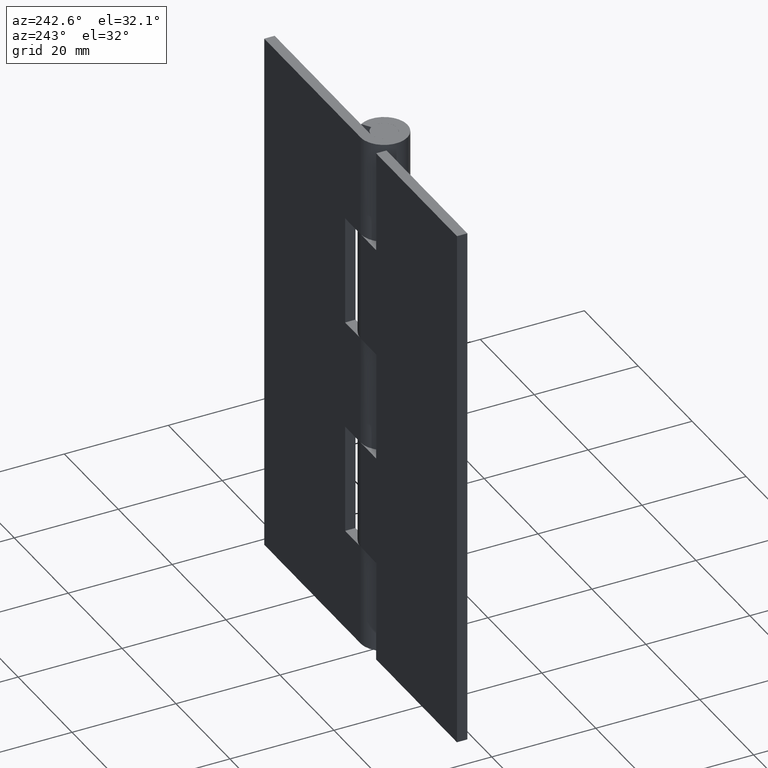
[diagram: clean part render]
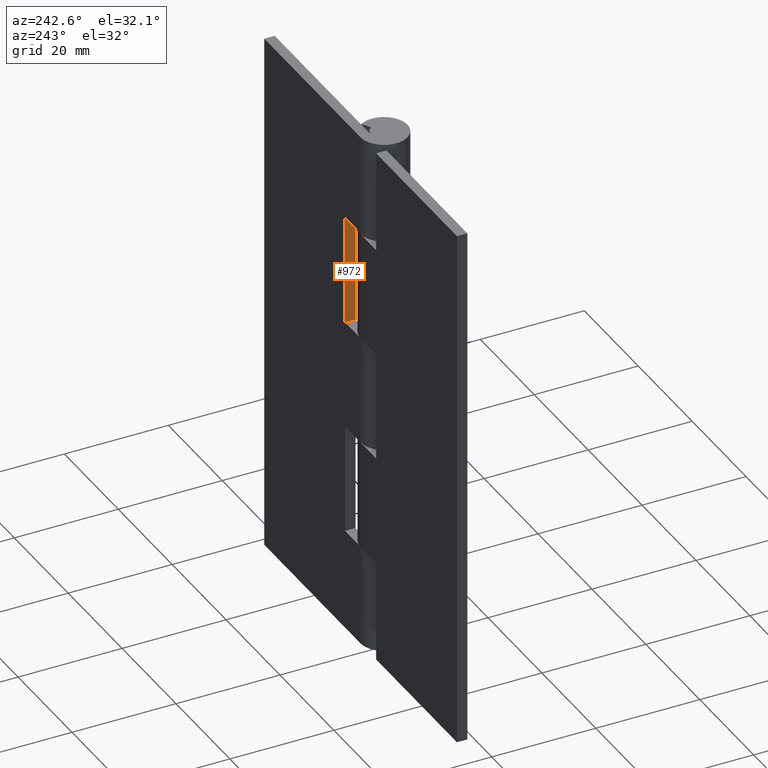
[diagram: same view with one face highlighted and labeled with its STEP entity id]
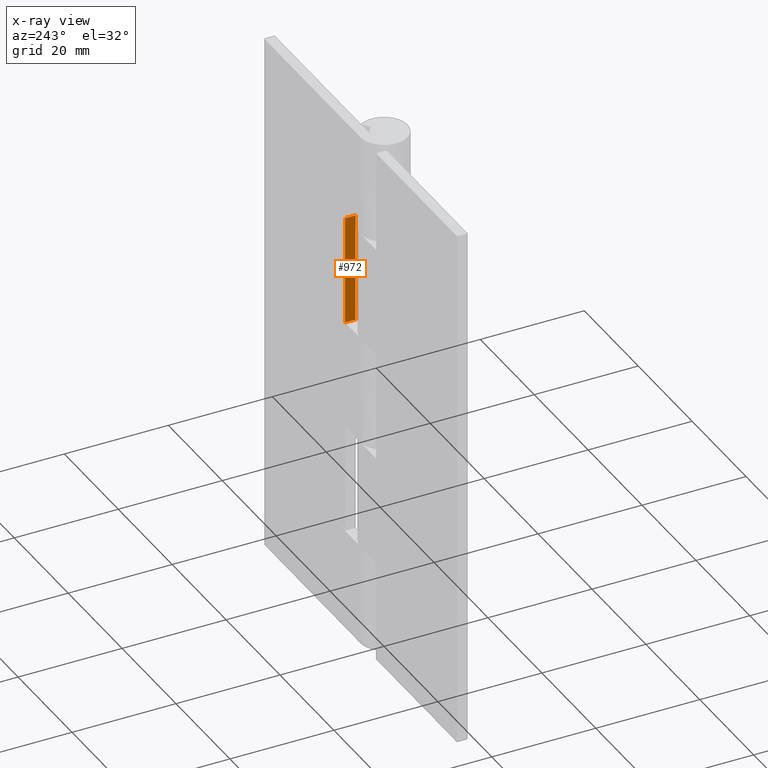
[diagram: x-ray of the same camera — body ghosted, the highlighted face saturated]
A machine part, auxiliary view. The second image highlights one B-rep face of the part: STEP entity #972.
The next image is the same camera in x-ray: the body ghosted, the highlighted face saturated — about 0% of this face is hidden behind the body in this view.
In plain terms, the highlighted face is a freeform B-spline surface patch.
Its self-contained STEP definition (entity closure, byte-faithful):
#937=CARTESIAN_POINT('',(5.750000000000000,2.400100003876332,60.451057721462881));
#938=CARTESIAN_POINT('',(5.750000000000000,2.400100003876332,83.548956964254700));
#939=CARTESIAN_POINT('',(5.750000000000000,4.599900049767743,60.451057721462881));
#940=CARTESIAN_POINT('',(5.750000000000000,4.599900049767743,83.548956964254700));
#941=B_SPLINE_SURFACE_WITH_KNOTS('',1,1,((#937,#939),(#938,#940)),.UNSPECIFIED.,.F.,.F.,.U.,(2,2),(2,2),(0.0,23.097899242791819),(0.0,2.199800045891410),.UNSPECIFIED.);
#942=CARTESIAN_POINT('',(5.750000000000000,2.499999999999945,82.500007999999994));
#943=VERTEX_POINT('',#942);
#944=CARTESIAN_POINT('',(5.750000000000000,4.499999999999949,82.500007999999994));
#945=VERTEX_POINT('',#944);
#946=CARTESIAN_POINT('',(5.750000000000000,2.499999999999945,82.500007999999994));
#947=CARTESIAN_POINT('',(5.750000000000000,4.499999999999949,82.500007999999994));
#948=QUASI_UNIFORM_CURVE('',1,(#946,#947),.UNSPECIFIED.,.F.,.U.);
#949=EDGE_CURVE('',#943,#945,#948,.T.);
#950=ORIENTED_EDGE('',*,*,#949,.T.);
#951=CARTESIAN_POINT('',(5.750000000000000,4.499999999999949,61.500008000000001));
#952=VERTEX_POINT('',#951);
#953=CARTESIAN_POINT('',(5.750000000000000,4.499999999999949,61.500008000000001));
#954=CARTESIAN_POINT('',(5.750000000000000,4.499999999999949,82.500007999999994));
#955=QUASI_UNIFORM_CURVE('',1,(#953,#954),.UNSPECIFIED.,.F.,.U.);
#956=EDGE_CURVE('',#952,#945,#955,.T.);
#957=ORIENTED_EDGE('',*,*,#956,.F.);
#958=CARTESIAN_POINT('',(5.750000000000000,2.499999999999945,61.500008000000001));
#959=VERTEX_POINT('',#958);
#960=CARTESIAN_POINT('',(5.750000000000000,2.499999999999945,61.500008000000001));
#961=CARTESIAN_POINT('',(5.750000000000000,4.499999999999949,61.500008000000001));
#962=QUASI_UNIFORM_CURVE('',1,(#960,#961),.UNSPECIFIED.,.F.,.U.);
#963=EDGE_CURVE('',#959,#952,#962,.T.);
#964=ORIENTED_EDGE('',*,*,#963,.F.);
#965=CARTESIAN_POINT('',(5.750000000000000,2.499999999999945,82.500007999999994));
#966=CARTESIAN_POINT('',(5.750000000000000,2.499999999999945,61.500008000000001));
#967=QUASI_UNIFORM_CURVE('',1,(#965,#966),.UNSPECIFIED.,.F.,.U.);
#968=EDGE_CURVE('',#943,#959,#967,.T.);
#969=ORIENTED_EDGE('',*,*,#968,.F.);
#970=EDGE_LOOP('',(#950,#957,#964,#969));
#971=FACE_OUTER_BOUND('',#970,.T.);
#972=ADVANCED_FACE('',(#971),#941,.T.);